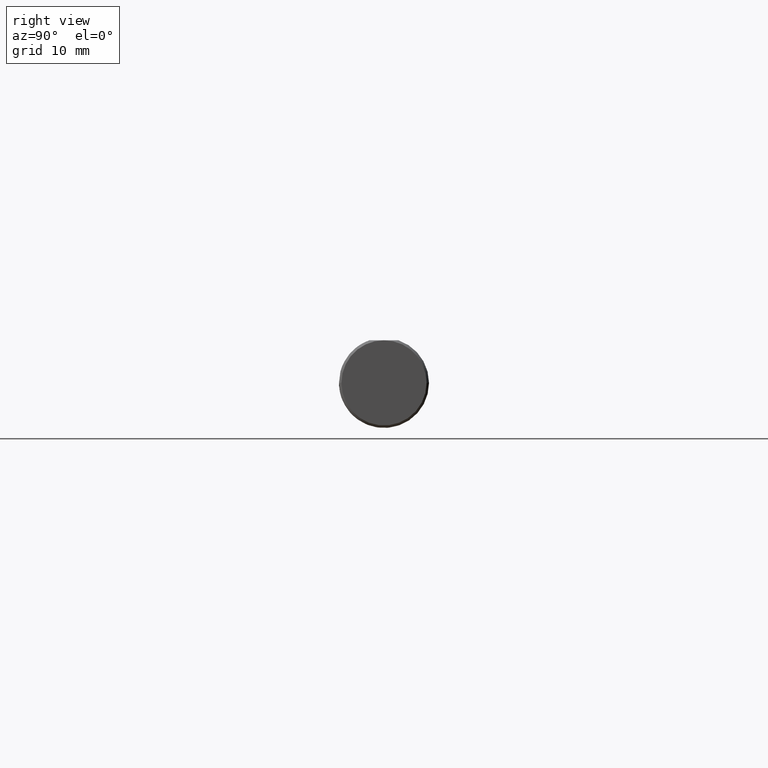
[diagram: clean part render]
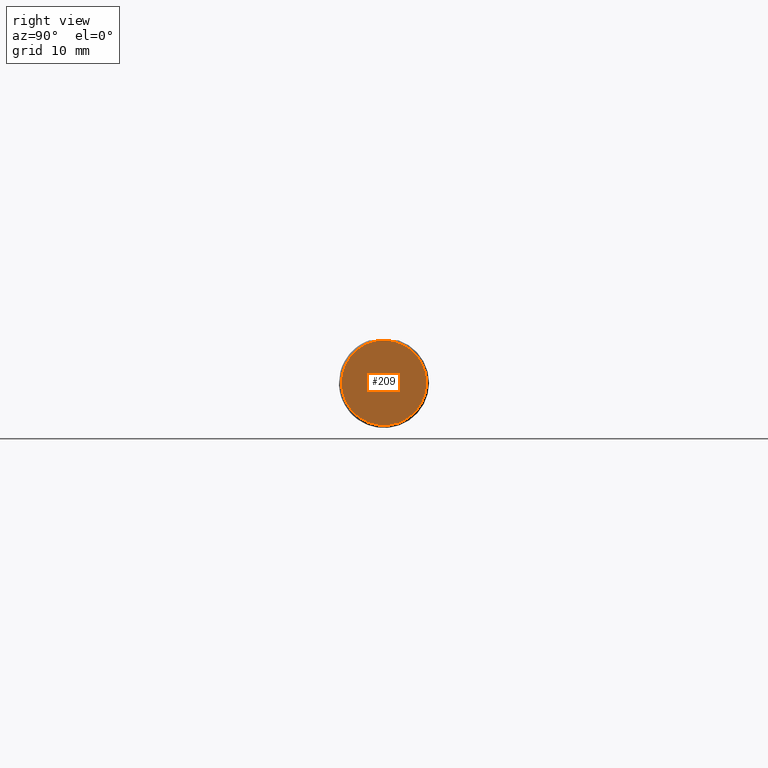
[diagram: same view with one face highlighted and labeled with its STEP entity id]
A machine part, right view. The second image highlights one B-rep face of the part: STEP entity #209.
In plain terms, the highlighted planar face has unit normal (1, 0, -0).
Its self-contained STEP definition (entity closure, byte-faithful):
#13 = CARTESIAN_POINT ( 'NONE',  ( -1.024723209186555203E-17, 0.1773500000000007848, 2.233143438245201271E-17 ) ) ;
#36 = CARTESIAN_POINT ( 'NONE',  ( 1.147187889101280854E-17, 3.061616997868382155E-16, 0.000000000000000000 ) ) ;
#88 = EDGE_CURVE ( 'NONE', #665, #711, #322, .T. ) ;
#158 = AXIS2_PLACEMENT_3D ( 'NONE', #664, #402, #592 ) ;
#163 = EDGE_CURVE ( 'NONE', #711, #604, #537, .T. ) ;
#191 = CIRCLE ( 'NONE', #259, 0.1773500000000004795 ) ;
#198 = FACE_OUTER_BOUND ( 'NONE', #694, .T. ) ;
#206 = ORIENTED_EDGE ( 'NONE', *, *, #651, .T. ) ;
#209 = ADVANCED_FACE ( 'NONE', ( #198 ), #323, .T. ) ;
#225 = DIRECTION ( 'NONE',  ( 1.000000000000000000, 1.224646799147352961E-16, -0.000000000000000000 ) ) ;
#259 = AXIS2_PLACEMENT_3D ( 'NONE', #556, #225, #702 ) ;
#313 = CARTESIAN_POINT ( 'NONE',  ( 1.147187889101284552E-17, 1.404899976408496659E-33, 0.000000000000000000 ) ) ;
#322 = CIRCLE ( 'NONE', #645, 0.1773500000000004795 ) ;
#323 = PLANE ( 'NONE',  #338 ) ;
#338 = AXIS2_PLACEMENT_3D ( 'NONE', #313, #796, #457 ) ;
#371 = DIRECTION ( 'NONE',  ( 1.000000000000000000, 1.224646799147352961E-16, -0.000000000000000000 ) ) ;
#402 = DIRECTION ( 'NONE',  ( 1.000000000000000000, 1.224646799147352961E-16, -0.000000000000000000 ) ) ;
#457 = DIRECTION ( 'NONE',  ( -1.224646799147352961E-16, 1.000000000000000000, 0.000000000000000000 ) ) ;
#494 = DIRECTION ( 'NONE',  ( -1.224646799147352961E-16, 1.000000000000000000, 0.000000000000000000 ) ) ;
#515 = CARTESIAN_POINT ( 'NONE',  ( -4.018563988022489946E-33, 2.586779880155948158E-16, 0.1773500000000000909 ) ) ;
#519 = ORIENTED_EDGE ( 'NONE', *, *, #88, .T. ) ;
#537 = CIRCLE ( 'NONE', #158, 0.1773500000000004795 ) ;
#556 = CARTESIAN_POINT ( 'NONE',  ( 1.147187889101280854E-17, 3.061616997868382155E-16, 0.000000000000000000 ) ) ;
#561 = CARTESIAN_POINT ( 'NONE',  ( 3.319098987389116449E-17, -0.1773500000000001464, 0.000000000000000000 ) ) ;
#592 = DIRECTION ( 'NONE',  ( -1.224646799147352961E-16, 1.000000000000000000, 0.000000000000000000 ) ) ;
#604 = VERTEX_POINT ( 'NONE', #561 ) ;
#645 = AXIS2_PLACEMENT_3D ( 'NONE', #36, #371, #494 ) ;
#651 = EDGE_CURVE ( 'NONE', #604, #665, #191, .T. ) ;
#664 = CARTESIAN_POINT ( 'NONE',  ( 1.147187889101280854E-17, 3.061616997868382155E-16, 0.000000000000000000 ) ) ;
#665 = VERTEX_POINT ( 'NONE', #13 ) ;
#694 = EDGE_LOOP ( 'NONE', ( #704, #206, #519 ) ) ;
#702 = DIRECTION ( 'NONE',  ( -1.224646799147352961E-16, 1.000000000000000000, 0.000000000000000000 ) ) ;
#704 = ORIENTED_EDGE ( 'NONE', *, *, #163, .T. ) ;
#711 = VERTEX_POINT ( 'NONE', #515 ) ;
#796 = DIRECTION ( 'NONE',  ( 1.000000000000000000, 1.224646799147352961E-16, -0.000000000000000000 ) ) ;